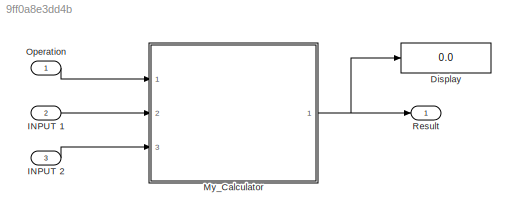
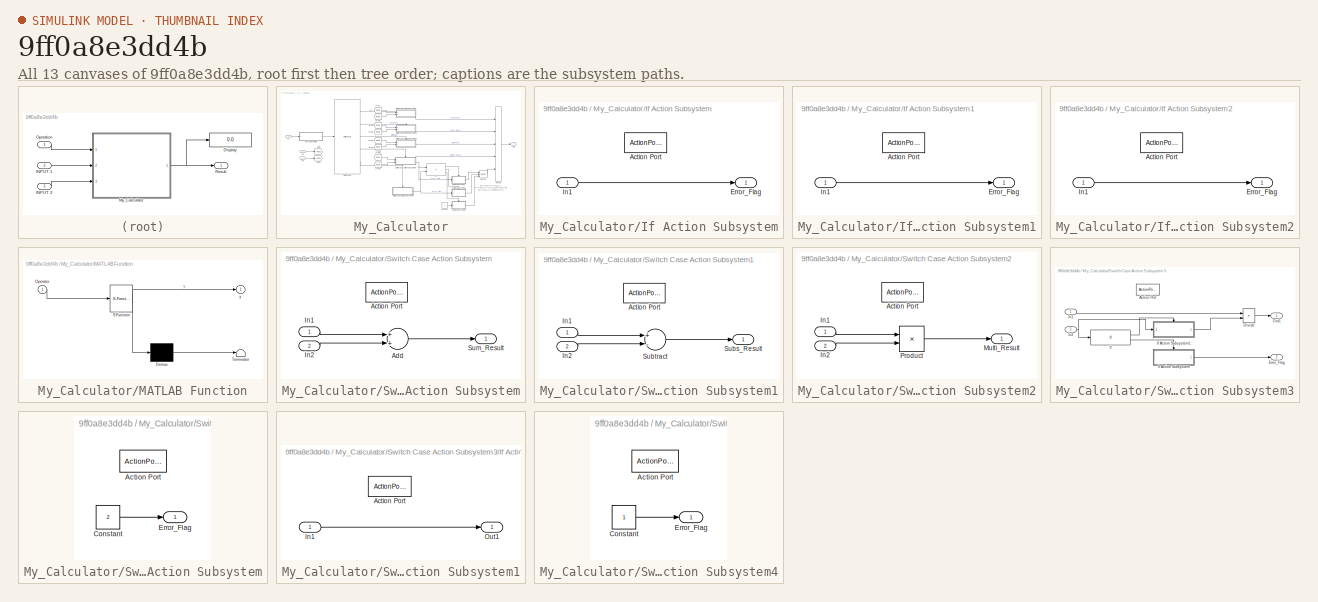
[diagram: thumbnail index - all 13 canvases of the model, root first then tree order]
MODEL slx_9ff0a8e3dd4b
KIND model
CONFIG AbsTol = auto
CONFIG EnableMultiTasking = off
CONFIG FixedStep = auto
CONFIG MaxStep = auto
CONFIG MinStep = auto
CONFIG RelTol = 1e-3
CONFIG SampleTimeConstraint = Unconstrained
CONFIG Solver = FixedStepDiscrete
CONFIG SolverName = FixedStepDiscrete
CONFIG StartTime = 0.0
CONFIG StopTime = 10.0
BLOCK [Display] Display
  Decimation = 1
  Ports = [1]
BLOCK [Inport] INPUT 1 
  IconDisplay = Port number
  OutDataTypeStr = int32
  Port = 2
BLOCK [Inport] INPUT 2
  IconDisplay = Port number
  OutDataTypeStr = int32
  Port = 3
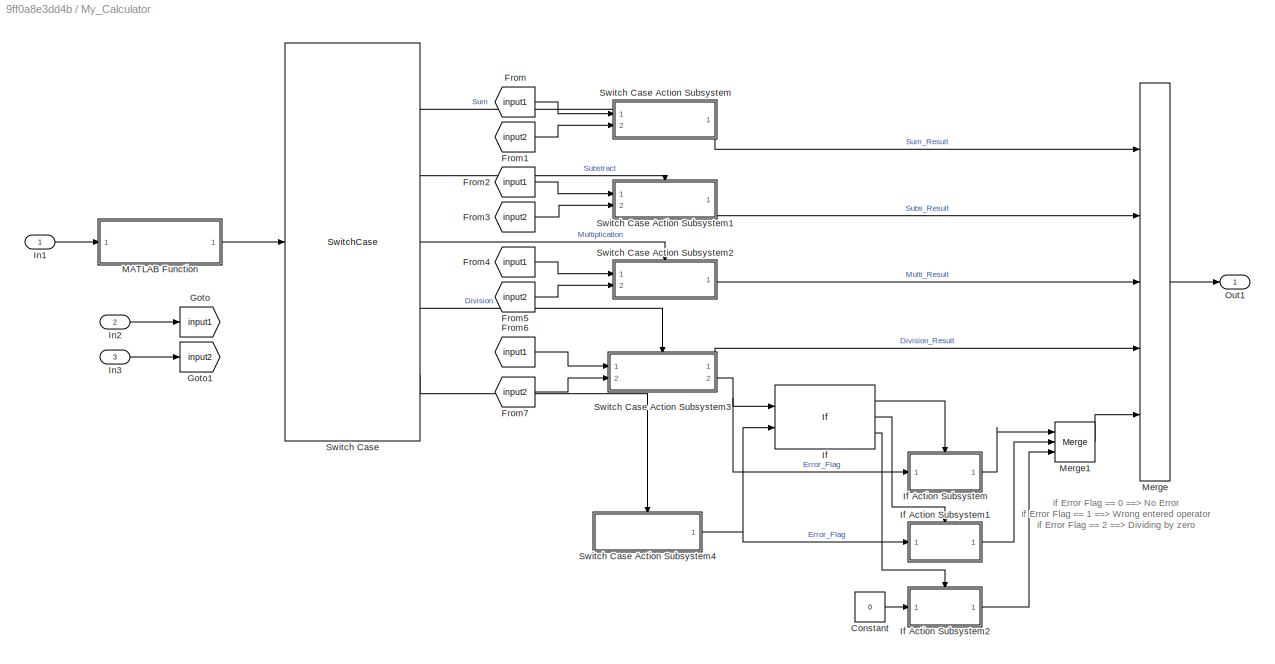
BLOCK [SubSystem] My_Calculator
  Ports = [3, 1]
  RTWFcnNameOpts = Use subsystem name
  RTWFileNameOpts = Use subsystem name
  RTWSystemCode = Reusable function
  RequestExecContextInheritance = off
  TreatAsAtomicUnit = on
BLOCK [Constant] My_Calculator/Constant
  OutDataTypeStr = int32
  Value = 0
BLOCK [From] My_Calculator/From
  GotoTag = input1
BLOCK [From] My_Calculator/From1
  GotoTag = input2
BLOCK [From] My_Calculator/From2
  GotoTag = input1
BLOCK [From] My_Calculator/From3
  GotoTag = input2
BLOCK [From] My_Calculator/From4
  GotoTag = input1
BLOCK [From] My_Calculator/From5
  GotoTag = input2
BLOCK [From] My_Calculator/From6
  GotoTag = input1
BLOCK [From] My_Calculator/From7
  GotoTag = input2
BLOCK [Goto] My_Calculator/Goto
  GotoTag = input1
BLOCK [Goto] My_Calculator/Goto1
  GotoTag = input2
BLOCK [If] My_Calculator/If
  ElseIfExpressions = u2 == 1
  IfExpression = u1 == 1
  NumInputs = 2
  Ports = [2, 3]
BLOCK [SubSystem] My_Calculator/If Action Subsystem
  Ports = [1, 1, 0, 0, 0, 0, 0, 1]
  RequestExecContextInheritance = off
  TreatAsAtomicUnit = on
BLOCK [ActionPort] My_Calculator/If Action Subsystem/Action Port
  ActionType = then
BLOCK [Outport] My_Calculator/If Action Subsystem/Error_Flag
  IconDisplay = Port number
  OutDataTypeStr = int32
BLOCK [Inport] My_Calculator/If Action Subsystem/In1
  IconDisplay = Port number
  OutDataTypeStr = int32
BLOCK [SubSystem] My_Calculator/If Action Subsystem1
  Ports = [1, 1, 0, 0, 0, 0, 0, 1]
  RequestExecContextInheritance = off
  TreatAsAtomicUnit = on
BLOCK [ActionPort] My_Calculator/If Action Subsystem1/Action Port
  ActionType = elseif
BLOCK [Outport] My_Calculator/If Action Subsystem1/Error_Flag
  IconDisplay = Port number
BLOCK [Inport] My_Calculator/If Action Subsystem1/In1
  IconDisplay = Port number
BLOCK [SubSystem] My_Calculator/If Action Subsystem2
  Ports = [1, 1, 0, 0, 0, 0, 0, 1]
  RequestExecContextInheritance = off
  TreatAsAtomicUnit = on
BLOCK [ActionPort] My_Calculator/If Action Subsystem2/Action Port
  ActionType = else
BLOCK [Outport] My_Calculator/If Action Subsystem2/Error_Flag
  IconDisplay = Port number
BLOCK [Inport] My_Calculator/If Action Subsystem2/In1
  IconDisplay = Port number
BLOCK [Inport] My_Calculator/In1
  IconDisplay = Port number
BLOCK [Inport] My_Calculator/In2
  IconDisplay = Port number
  OutDataTypeStr = int32
  Port = 2
BLOCK [Inport] My_Calculator/In3
  IconDisplay = Port number
  OutDataTypeStr = int32
  Port = 3
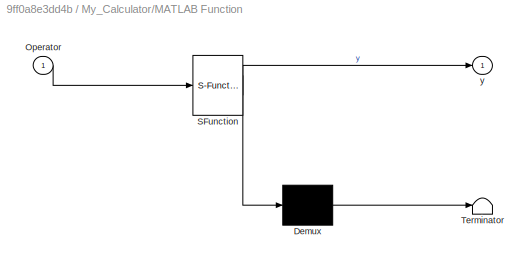
BLOCK [SubSystem] My_Calculator/MATLAB Function
  ErrorFcn = Stateflow.Translate.translate
  PermitHierarchicalResolution = ExplicitOnly
  Ports = [1, 1]
  RequestExecContextInheritance = off
  SFBlockType = MATLAB Function
  TreatAsAtomicUnit = on
BLOCK [Demux] My_Calculator/MATLAB Function/ Demux 
  Outputs = 1
  Ports = [1, 1]
BLOCK [S-Function] My_Calculator/MATLAB Function/ SFunction 
  EnableBusSupport = on
  FunctionName = sf_sfun
  PortCounts = [1 2]
  Ports = [1, 2]
  SFcnIsStateOwnerBlock = off
  SFunctionDeploymentMode = off
  Tag = Stateflow S-Function Calculator 2
BLOCK [Terminator] My_Calculator/MATLAB Function/ Terminator 
BLOCK [Inport] My_Calculator/MATLAB Function/Operator
  IconDisplay = Port number
BLOCK [Outport] My_Calculator/MATLAB Function/y
  IconDisplay = Port number
BLOCK [Merge] My_Calculator/Merge
  Inputs = 5
  Ports = [5, 1]
BLOCK [Merge] My_Calculator/Merge1
  Inputs = 3
  Ports = [3, 1]
BLOCK [Outport] My_Calculator/Out1
  IconDisplay = Port number
BLOCK [SwitchCase] My_Calculator/Switch Case
  CaseConditions = {0 1 2 3}
  Ports = [1, 5]
BLOCK [SubSystem] My_Calculator/Switch Case Action Subsystem
  Ports = [2, 1, 0, 0, 0, 0, 0, 1]
  RequestExecContextInheritance = off
  TreatAsAtomicUnit = on
BLOCK [ActionPort] My_Calculator/Switch Case Action Subsystem/Action Port
  ActionType = case
BLOCK [Sum] My_Calculator/Switch Case Action Subsystem/Add
  InputSameDT = off
  OutDataTypeStr = Inherit: Inherit via internal rule
  Ports = [2, 1]
  SaturateOnIntegerOverflow = off
BLOCK [Inport] My_Calculator/Switch Case Action Subsystem/In1
  IconDisplay = Port number
BLOCK [Inport] My_Calculator/Switch Case Action Subsystem/In2
  IconDisplay = Port number
  Port = 2
BLOCK [Outport] My_Calculator/Switch Case Action Subsystem/Sum_Result
  IconDisplay = Port number
BLOCK [SubSystem] My_Calculator/Switch Case Action Subsystem1
  Ports = [2, 1, 0, 0, 0, 0, 0, 1]
  RequestExecContextInheritance = off
  TreatAsAtomicUnit = on
BLOCK [ActionPort] My_Calculator/Switch Case Action Subsystem1/Action Port
  ActionType = case
BLOCK [Inport] My_Calculator/Switch Case Action Subsystem1/In1
  IconDisplay = Port number
BLOCK [Inport] My_Calculator/Switch Case Action Subsystem1/In2
  IconDisplay = Port number
  Port = 2
BLOCK [Outport] My_Calculator/Switch Case Action Subsystem1/Subs_Result
  IconDisplay = Port number
BLOCK [Sum] My_Calculator/Switch Case Action Subsystem1/Subtract
  InputSameDT = off
  Inputs = +-
  OutDataTypeStr = Inherit: Inherit via internal rule
  Ports = [2, 1]
  SaturateOnIntegerOverflow = off
BLOCK [SubSystem] My_Calculator/Switch Case Action Subsystem2
  Ports = [2, 1, 0, 0, 0, 0, 0, 1]
  RequestExecContextInheritance = off
  TreatAsAtomicUnit = on
BLOCK [ActionPort] My_Calculator/Switch Case Action Subsystem2/Action Port
  ActionType = case
BLOCK [Inport] My_Calculator/Switch Case Action Subsystem2/In1
  IconDisplay = Port number
BLOCK [Inport] My_Calculator/Switch Case Action Subsystem2/In2
  IconDisplay = Port number
  Port = 2
BLOCK [Outport] My_Calculator/Switch Case Action Subsystem2/Multi_Result
  IconDisplay = Port number
  OutDataTypeStr = int32
BLOCK [Product] My_Calculator/Switch Case Action Subsystem2/Product
  InputSameDT = off
  OutDataTypeStr = int32
  Ports = [2, 1]
  RndMeth = Floor
  SaturateOnIntegerOverflow = off
BLOCK [SubSystem] My_Calculator/Switch Case Action Subsystem3
  Ports = [2, 2, 0, 0, 0, 0, 0, 1]
  RequestExecContextInheritance = off
  TreatAsAtomicUnit = on
BLOCK [ActionPort] My_Calculator/Switch Case Action Subsystem3/Action Port
  ActionType = case
BLOCK [Product] My_Calculator/Switch Case Action Subsystem3/Divide
  InputSameDT = off
  Inputs = */
  OutDataTypeStr = Inherit: Inherit via internal rule
  Ports = [2, 1]
  RndMeth = Floor
  SaturateOnIntegerOverflow = off
BLOCK [Outport] My_Calculator/Switch Case Action Subsystem3/Error_Flag
  IconDisplay = Port number
  OutDataTypeStr = int32
  Port = 2
BLOCK [If] My_Calculator/Switch Case Action Subsystem3/If
  IfExpression = u1 ~= 0
  Ports = [1, 2]
BLOCK [SubSystem] My_Calculator/Switch Case Action Subsystem3/If Action Subsystem
  Ports = [0, 1, 0, 0, 0, 0, 0, 1]
  RequestExecContextInheritance = off
  TreatAsAtomicUnit = on
BLOCK [ActionPort] My_Calculator/Switch Case Action Subsystem3/If Action Subsystem/Action Port
  ActionType = else
BLOCK [Constant] My_Calculator/Switch Case Action Subsystem3/If Action Subsystem/Constant
  OutDataTypeStr = int32
  Value = 2
BLOCK [Outport] My_Calculator/Switch Case Action Subsystem3/If Action Subsystem/Error_Flag
  IconDisplay = Port number
  OutDataTypeStr = int32
BLOCK [SubSystem] My_Calculator/Switch Case Action Subsystem3/If Action Subsystem1
  Ports = [1, 1, 0, 0, 0, 0, 0, 1]
  RequestExecContextInheritance = off
  TreatAsAtomicUnit = on
BLOCK [ActionPort] My_Calculator/Switch Case Action Subsystem3/If Action Subsystem1/Action Port
  ActionType = then
BLOCK [Inport] My_Calculator/Switch Case Action Subsystem3/If Action Subsystem1/In1
  IconDisplay = Port number
BLOCK [Outport] My_Calculator/Switch Case Action Subsystem3/If Action Subsystem1/Out1
  IconDisplay = Port number
BLOCK [Inport] My_Calculator/Switch Case Action Subsystem3/In1
  IconDisplay = Port number
BLOCK [Inport] My_Calculator/Switch Case Action Subsystem3/In2
  IconDisplay = Port number
  Port = 2
BLOCK [Outport] My_Calculator/Switch Case Action Subsystem3/Out1
  IconDisplay = Port number
  OutDataTypeStr = int32
BLOCK [SubSystem] My_Calculator/Switch Case Action Subsystem4
  Ports = [0, 1, 0, 0, 0, 0, 0, 1]
  RequestExecContextInheritance = off
  TreatAsAtomicUnit = on
BLOCK [ActionPort] My_Calculator/Switch Case Action Subsystem4/Action Port
  ActionType = default
BLOCK [Constant] My_Calculator/Switch Case Action Subsystem4/Constant
  OutDataTypeStr = int32
BLOCK [Outport] My_Calculator/Switch Case Action Subsystem4/Error_Flag
  IconDisplay = Port number
  OutDataTypeStr = int32
BLOCK [Inport] Operation 
  IconDisplay = Port number
BLOCK [Outport] Result 
  IconDisplay = Port number
  OutDataTypeStr = int32
ANNOTATION My_Calculator: if Error Flag == 0 ==> No Error if Error Flag == 1 ==> Wrong entered operator if Error Flag == 2 ==> Dividing by zero
LINE INPUT 1 :1 -> My_Calculator:2
LINE INPUT 2:1 -> My_Calculator:3
LINE My_Calculator/Constant:1 -> My_Calculator/If Action Subsystem2:1
LINE My_Calculator/From1:1 -> My_Calculator/Switch Case Action Subsystem:2
LINE My_Calculator/From2:1 -> My_Calculator/Switch Case Action Subsystem1:1
LINE My_Calculator/From3:1 -> My_Calculator/Switch Case Action Subsystem1:2
LINE My_Calculator/From4:1 -> My_Calculator/Switch Case Action Subsystem2:1
LINE My_Calculator/From5:1 -> My_Calculator/Switch Case Action Subsystem2:2
LINE My_Calculator/From6:1 -> My_Calculator/Switch Case Action Subsystem3:1
LINE My_Calculator/From7:1 -> My_Calculator/Switch Case Action Subsystem3:2
LINE My_Calculator/From:1 -> My_Calculator/Switch Case Action Subsystem:1
LINE My_Calculator/If Action Subsystem/In1:1 -> My_Calculator/If Action Subsystem/Error_Flag:1
LINE My_Calculator/If Action Subsystem1/In1:1 -> My_Calculator/If Action Subsystem1/Error_Flag:1
LINE My_Calculator/If Action Subsystem1:1 -> My_Calculator/Merge1:2
LINE My_Calculator/If Action Subsystem2/In1:1 -> My_Calculator/If Action Subsystem2/Error_Flag:1
LINE My_Calculator/If Action Subsystem2:1 -> My_Calculator/Merge1:3
LINE My_Calculator/If Action Subsystem:1 -> My_Calculator/Merge1:1
LINE My_Calculator/If:1 -> My_Calculator/If Action Subsystem:ifaction
LINE My_Calculator/If:2 -> My_Calculator/If Action Subsystem1:ifaction
LINE My_Calculator/If:3 -> My_Calculator/If Action Subsystem2:ifaction
LINE My_Calculator/In1:1 -> My_Calculator/MATLAB Function:1
LINE My_Calculator/In2:1 -> My_Calculator/Goto:1
LINE My_Calculator/In3:1 -> My_Calculator/Goto1:1
LINE My_Calculator/MATLAB Function:1 -> My_Calculator/Switch Case:1
LINE My_Calculator/Merge1:1 -> My_Calculator/Merge:5
LINE My_Calculator/Merge:1 -> My_Calculator/Out1:1
LINE My_Calculator/Switch Case Action Subsystem/Add:1 -> My_Calculator/Switch Case Action Subsystem/Sum_Result:1
LINE My_Calculator/Switch Case Action Subsystem/In1:1 -> My_Calculator/Switch Case Action Subsystem/Add:1
LINE My_Calculator/Switch Case Action Subsystem/In2:1 -> My_Calculator/Switch Case Action Subsystem/Add:2
LINE My_Calculator/Switch Case Action Subsystem1/In1:1 -> My_Calculator/Switch Case Action Subsystem1/Subtract:1
LINE My_Calculator/Switch Case Action Subsystem1/In2:1 -> My_Calculator/Switch Case Action Subsystem1/Subtract:2
LINE My_Calculator/Switch Case Action Subsystem1/Subtract:1 -> My_Calculator/Switch Case Action Subsystem1/Subs_Result:1
LINE My_Calculator/Switch Case Action Subsystem1:1 -> My_Calculator/Merge:2
LINE My_Calculator/Switch Case Action Subsystem2/In1:1 -> My_Calculator/Switch Case Action Subsystem2/Product:1
LINE My_Calculator/Switch Case Action Subsystem2/In2:1 -> My_Calculator/Switch Case Action Subsystem2/Product:2
LINE My_Calculator/Switch Case Action Subsystem2/Product:1 -> My_Calculator/Switch Case Action Subsystem2/Multi_Result:1
LINE My_Calculator/Switch Case Action Subsystem2:1 -> My_Calculator/Merge:3
LINE My_Calculator/Switch Case Action Subsystem3/Divide:1 -> My_Calculator/Switch Case Action Subsystem3/Out1:1
LINE My_Calculator/Switch Case Action Subsystem3/If Action Subsystem/Constant:1 -> My_Calculator/Switch Case Action Subsystem3/If Action Subsystem/Error_Flag:1
LINE My_Calculator/Switch Case Action Subsystem3/If Action Subsystem1/In1:1 -> My_Calculator/Switch Case Action Subsystem3/If Action Subsystem1/Out1:1
LINE My_Calculator/Switch Case Action Subsystem3/If Action Subsystem1:1 -> My_Calculator/Switch Case Action Subsystem3/Divide:2
LINE My_Calculator/Switch Case Action Subsystem3/If Action Subsystem:1 -> My_Calculator/Switch Case Action Subsystem3/Error_Flag:1
LINE My_Calculator/Switch Case Action Subsystem3/If:1 -> My_Calculator/Switch Case Action Subsystem3/If Action Subsystem1:ifaction
LINE My_Calculator/Switch Case Action Subsystem3/If:2 -> My_Calculator/Switch Case Action Subsystem3/If Action Subsystem:ifaction
LINE My_Calculator/Switch Case Action Subsystem3/In1:1 -> My_Calculator/Switch Case Action Subsystem3/Divide:1
NET My_Calculator/Switch Case Action Subsystem3/In2:1 -> My_Calculator/Switch Case Action Subsystem3/If Action Subsystem1:1, My_Calculator/Switch Case Action Subsystem3/If:1
LINE My_Calculator/Switch Case Action Subsystem3:1 -> My_Calculator/Merge:4
NET My_Calculator/Switch Case Action Subsystem3:2 -> My_Calculator/If Action Subsystem:1, My_Calculator/If:1
LINE My_Calculator/Switch Case Action Subsystem4/Constant:1 -> My_Calculator/Switch Case Action Subsystem4/Error_Flag:1
NET My_Calculator/Switch Case Action Subsystem4:1 -> My_Calculator/If Action Subsystem1:1, My_Calculator/If:2
LINE My_Calculator/Switch Case Action Subsystem:1 -> My_Calculator/Merge:1
LINE My_Calculator/Switch Case:1 -> My_Calculator/Switch Case Action Subsystem:ifaction
LINE My_Calculator/Switch Case:2 -> My_Calculator/Switch Case Action Subsystem1:ifaction
LINE My_Calculator/Switch Case:3 -> My_Calculator/Switch Case Action Subsystem2:ifaction
LINE My_Calculator/Switch Case:4 -> My_Calculator/Switch Case Action Subsystem3:ifaction
LINE My_Calculator/Switch Case:5 -> My_Calculator/Switch Case Action Subsystem4:ifaction
NET My_Calculator:1 -> Display:1, Result :1
LINE Operation :1 -> My_Calculator:1
note: NET lines group one-source signal fan-out (src -> all destinations, sorted); 1:1 wires keep LINE
CHART My_Calculator/MATLAB Function states=1 transitions=1
  STATE_LABEL 'eML_blk_kernel()'
  STATE_LABEL "SCRIPT:\nfunction y = fcn(Operator)\ny=0;\nswitch Operator\n    case '+'\n        y=0;\n    case '-'\n        y=1;\n    case '*'\n        y=2;\n    case '/'\n        y=3;\n    otherwise\n        y=4;\nend"
